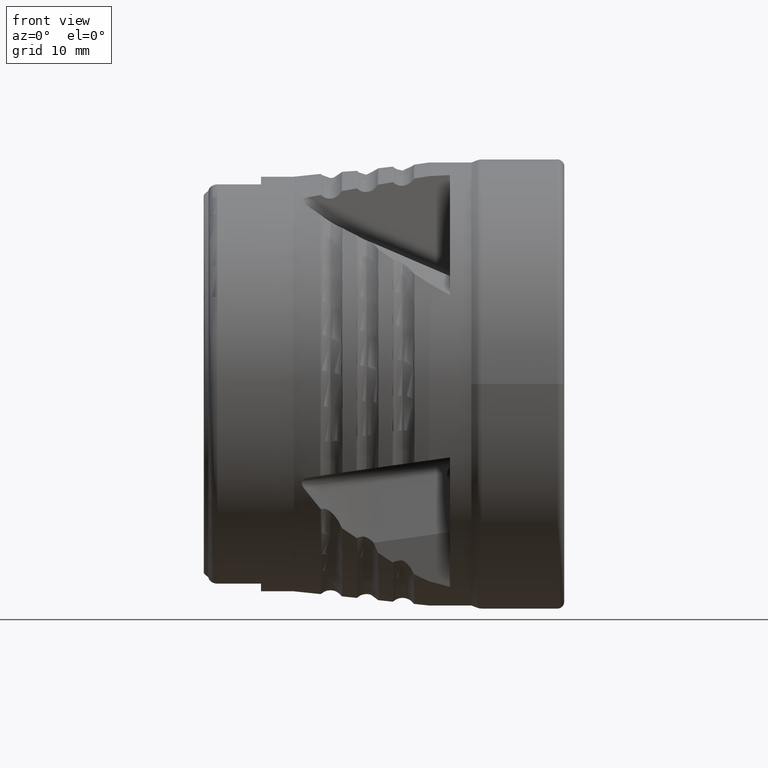
[diagram: clean part render]
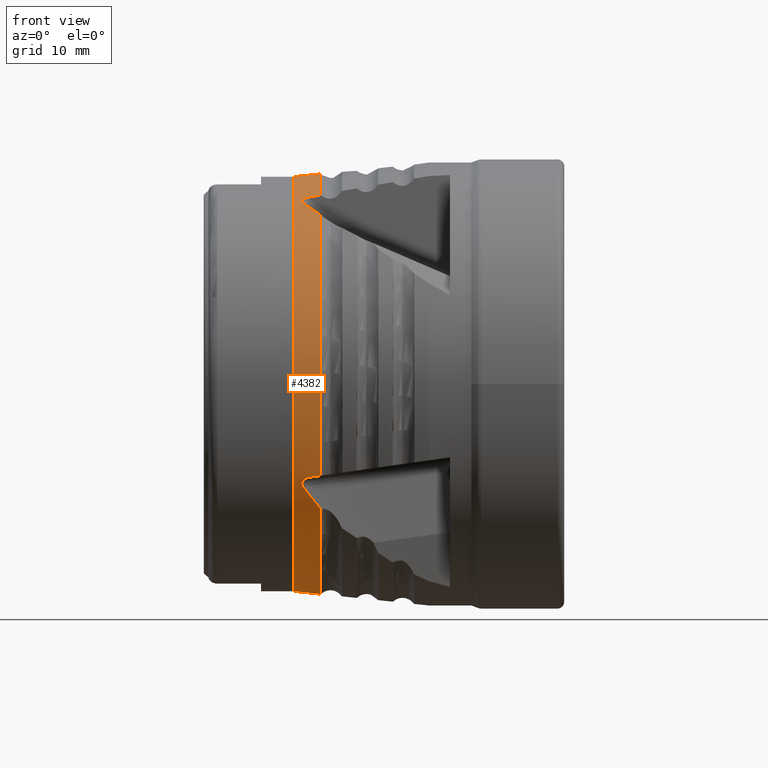
[diagram: same view with one face highlighted and labeled with its STEP entity id]
A machine part, front view. The second image highlights one B-rep face of the part: STEP entity #4382.
In plain terms, the highlighted conical surface has half-angle 5.994 deg.
Its self-contained STEP definition (entity closure, byte-faithful):
#788 = CARTESIAN_POINT ( 'NONE',  ( -26.65139746013423000, -12.29320080413323900, 19.65939681471392200 ) ) ;
#789 = CARTESIAN_POINT ( 'NONE',  ( -27.22045154104592500, -11.45574403278513200, 20.06864055888263800 ) ) ;
#797 = CARTESIAN_POINT ( 'NONE',  ( -26.02706063740641100, -13.07695468036883000, 19.22284738714630900 ) ) ;
#798 = CARTESIAN_POINT ( 'NONE',  ( -25.34068121597898900, -13.80947964294550800, 18.77348126520351100 ) ) ;
#816 = CARTESIAN_POINT ( 'NONE',  ( -25.34068121597906000, -10.18173196973281600, 20.96372249674169200 ) ) ;
#821 = CARTESIAN_POINT ( 'NONE',  ( -25.76481630875866100, -10.24134026969865000, 20.88526285211207800 ) ) ;
#822 = CARTESIAN_POINT ( 'NONE',  ( -26.18656862670541200, -10.30061369250056200, 20.80669119647839000 ) ) ;
#823 = CARTESIAN_POINT ( 'NONE',  ( -26.60593478011735900, -10.35955176174699900, 20.72800816133562700 ) ) ;
#1063 = CARTESIAN_POINT ( 'NONE',  ( -25.34068121597906800, 0.0000000000000000000, 0.0000000000000000000 ) ) ;
#1064 = DIRECTION ( 'NONE',  ( 1.000000000000000000, -0.0000000000000000000, -0.0000000000000000000 ) ) ;
#1066 = DIRECTION ( 'NONE',  ( 0.0000000000000000000, 0.0000000000000000000, -1.000000000000000000 ) ) ;
#1098 = CARTESIAN_POINT ( 'NONE',  ( -25.34068121597906800, 0.0000000000000000000, 0.0000000000000000000 ) ) ;
#1100 = DIRECTION ( 'NONE',  ( 1.000000000000000000, -0.0000000000000000000, -0.0000000000000000000 ) ) ;
#1102 = DIRECTION ( 'NONE',  ( 0.0000000000000000000, 0.0000000000000000000, -1.000000000000000000 ) ) ;
#1269 = CARTESIAN_POINT ( 'NONE',  ( -26.65139746013426200, -19.65939681471389400, -12.29320080413326500 ) ) ;
#1270 = CARTESIAN_POINT ( 'NONE',  ( -27.22045154104592500, -20.06864055888259200, -11.45574403278520300 ) ) ;
#1280 = CARTESIAN_POINT ( 'NONE',  ( -26.02706063740647800, -19.22284738714630200, -13.07695468036882000 ) ) ;
#1282 = CARTESIAN_POINT ( 'NONE',  ( -25.34068121597909600, -18.77348126520352500, -13.80947964294546500 ) ) ;
#1331 = EDGE_CURVE ( 'NONE', #4517, #4740, #3723, .T. ) ;
#1349 = EDGE_CURVE ( 'NONE', #3768, #3786, #5990, .T. ) ;
#1379 = EDGE_CURVE ( 'NONE', #4659, #4535, #2539, .T. ) ;
#1564 = LINE ( 'NONE', #1568, #4831 ) ;
#1568 = CARTESIAN_POINT ( 'NONE',  ( -25.34068121597906800, 0.0000000000000000000, -23.30547847232219300 ) ) ;
#1570 = DIRECTION ( 'NONE',  ( 0.9945326667047194000, 0.0000000000000000000, -0.1044259300039964100 ) ) ;
#1836 = CARTESIAN_POINT ( 'NONE',  ( -27.22045154104592500, -20.06864055888259200, -11.45574403278520300 ) ) ;
#1853 = CARTESIAN_POINT ( 'NONE',  ( -25.34068121597906000, -20.96372249674166400, -10.18173196973288700 ) ) ;
#1856 = CARTESIAN_POINT ( 'NONE',  ( -26.60593478011735900, -10.35955176174699900, 20.72800816133562700 ) ) ;
#1863 = CARTESIAN_POINT ( 'NONE',  ( -27.22045154104592500, -11.45574403278513200, 20.06864055888263800 ) ) ;
#1869 = CARTESIAN_POINT ( 'NONE',  ( -26.60593478011757900, -20.72800816133555200, -10.35955176174709900 ) ) ;
#1887 = CARTESIAN_POINT ( 'NONE',  ( -27.22045154104592500, -20.06864055888259200, -11.45574403278520300 ) ) ;
#1922 = CARTESIAN_POINT ( 'NONE',  ( -25.34068121597898900, -13.80947964294550800, 18.77348126520351100 ) ) ;
#1925 = CARTESIAN_POINT ( 'NONE',  ( -25.34068121597906000, -10.18173196973281600, 20.96372249674169200 ) ) ;
#2299 = CARTESIAN_POINT ( 'NONE',  ( -25.34068121597906000, -20.96372249674166400, -10.18173196973288700 ) ) ;
#2304 = DIRECTION ( 'NONE',  ( 0.0000000000000000000, 0.0000000000000000000, -1.000000000000000000 ) ) ;
#2305 = DIRECTION ( 'NONE',  ( 1.000000000000000000, -0.0000000000000000000, -0.0000000000000000000 ) ) ;
#2306 = CARTESIAN_POINT ( 'NONE',  ( -25.34068121597906800, 0.0000000000000000000, 0.0000000000000000000 ) ) ;
#2343 = CARTESIAN_POINT ( 'NONE',  ( -26.18656862670567500, -20.80669119647830800, -10.30061369250065600 ) ) ;
#2366 = CARTESIAN_POINT ( 'NONE',  ( -25.76481630875879200, -20.88526285211201700, -10.24134026969873900 ) ) ;
#2375 = CARTESIAN_POINT ( 'NONE',  ( -26.60593478011757900, -20.72800816133555200, -10.35955176174709900 ) ) ;
#2539 = LINE ( 'NONE', #2585, #3749 ) ;
#2543 = DIRECTION ( 'NONE',  ( 0.9945326667047194000, 1.278848809273797600E-017, 0.1044259300039964100 ) ) ;
#2585 = CARTESIAN_POINT ( 'NONE',  ( -25.34068121597906800, 2.854097961372692100E-015, 23.30547847232219300 ) ) ;
#3001 = EDGE_LOOP ( 'NONE', ( #5366, #5295, #5602, #5737, #5673, #5297, #5300, #5629, #5675, #5291, #5667, #5724 ) ) ;
#3158 = B_SPLINE_CURVE_WITH_KNOTS ( 'NONE', 3,
 ( #1270, #1269, #1280, #1282 ),
 .UNSPECIFIED., .F., .F.,
 ( 4, 4 ),
 ( 0.002104585943390354500, 0.005379675371929737400 ),
 .UNSPECIFIED. ) ;
#3193 = B_SPLINE_CURVE_WITH_KNOTS ( 'NONE', 3,
 ( #789, #788, #797, #798 ),
 .UNSPECIFIED., .F., .F.,
 ( 4, 4 ),
 ( 0.002104585943390369300, 0.005379675371929917000 ),
 .UNSPECIFIED. ) ;
#3267 = B_SPLINE_CURVE_WITH_KNOTS ( 'NONE', 3,
 ( #1836, #6246, #6259, #6260, #6261, #6262, #6263, #6264, #6265, #6266, #6267, #6268 ),
 .UNSPECIFIED., .F., .F.,
 ( 4, 2, 2, 2, 2, 4 ),
 ( 1.734723475976807100E-018, 0.0002126850559633348800, 0.0004253701119266680200, 0.0008507402238533343100, 0.001276110335780000600, 0.001701480447706666900 ),
 .UNSPECIFIED. ) ;
#3271 = B_SPLINE_CURVE_WITH_KNOTS ( 'NONE', 3,
 ( #6982, #6242, #6247, #6248, #6249, #6250, #6251, #6252, #6253, #6254, #6255, #6256 ),
 .UNSPECIFIED., .F., .F.,
 ( 4, 2, 2, 2, 2, 4 ),
 ( 1.734723475976807100E-018, 0.0002126850559633622000, 0.0004253701119267226700, 0.0008507402238534424000, 0.001276110335780162100, 0.001701480447706882000 ),
 .UNSPECIFIED. ) ;
#3309 = CIRCLE ( 'NONE', #3313, 23.30547847232219300 ) ;
#3313 = AXIS2_PLACEMENT_3D ( 'NONE', #1063, #1064, #1066 ) ;
#3320 = CIRCLE ( 'NONE', #3324, 23.30547847232219300 ) ;
#3324 = AXIS2_PLACEMENT_3D ( 'NONE', #1098, #1100, #1102 ) ;
#3467 = EDGE_CURVE ( 'NONE', #4750, #4740, #1564, .T. ) ;
#3552 = CONICAL_SURFACE ( 'NONE', #3553, 23.30547847232219300, 0.1046166576325205800 ) ;
#3553 = AXIS2_PLACEMENT_3D ( 'NONE', #6403, #6399, #6404 ) ;
#3586 = CIRCLE ( 'NONE', #3588, 22.99999999999999300 ) ;
#3588 = AXIS2_PLACEMENT_3D ( 'NONE', #6520, #6521, #6522 ) ;
#3723 = CIRCLE ( 'NONE', #3726, 23.30547847232219300 ) ;
#3726 = AXIS2_PLACEMENT_3D ( 'NONE', #2306, #2305, #2304 ) ;
#3749 = VECTOR ( 'NONE', #2543, 1000.000000000000000 ) ;
#3768 = VERTEX_POINT ( 'NONE', #1853 ) ;
#3773 = VERTEX_POINT ( 'NONE', #1856 ) ;
#3780 = VERTEX_POINT ( 'NONE', #1863 ) ;
#3786 = VERTEX_POINT ( 'NONE', #1869 ) ;
#3805 = VERTEX_POINT ( 'NONE', #1887 ) ;
#3842 = VERTEX_POINT ( 'NONE', #1922 ) ;
#3845 = VERTEX_POINT ( 'NONE', #1925 ) ;
#4194 = EDGE_CURVE ( 'NONE', #3780, #3842, #3193, .T. ) ;
#4200 = EDGE_CURVE ( 'NONE', #3845, #3773, #6015, .T. ) ;
#4239 = EDGE_CURVE ( 'NONE', #3842, #3768, #3309, .T. ) ;
#4244 = EDGE_CURVE ( 'NONE', #4535, #3845, #3320, .T. ) ;
#4264 = EDGE_CURVE ( 'NONE', #3805, #4517, #3158, .T. ) ;
#4348 = EDGE_CURVE ( 'NONE', #3780, #3773, #3271, .T. ) ;
#4349 = EDGE_CURVE ( 'NONE', #3805, #3786, #3267, .T. ) ;
#4382 = ADVANCED_FACE ( 'NONE', ( #6394 ), #3552, .T. ) ;
#4413 = EDGE_CURVE ( 'NONE', #4659, #4750, #3586, .T. ) ;
#4517 = VERTEX_POINT ( 'NONE', #6831 ) ;
#4535 = VERTEX_POINT ( 'NONE', #6846 ) ;
#4659 = VERTEX_POINT ( 'NONE', #6954 ) ;
#4740 = VERTEX_POINT ( 'NONE', #7034 ) ;
#4750 = VERTEX_POINT ( 'NONE', #7043 ) ;
#4831 = VECTOR ( 'NONE', #1570, 1000.000000000000000 ) ;
#5291 = ORIENTED_EDGE ( 'NONE', *, *, #4348, .T. ) ;
#5295 = ORIENTED_EDGE ( 'NONE', *, *, #4413, .T. ) ;
#5297 = ORIENTED_EDGE ( 'NONE', *, *, #4349, .T. ) ;
#5300 = ORIENTED_EDGE ( 'NONE', *, *, #1349, .F. ) ;
#5366 = ORIENTED_EDGE ( 'NONE', *, *, #1379, .F. ) ;
#5602 = ORIENTED_EDGE ( 'NONE', *, *, #3467, .T. ) ;
#5629 = ORIENTED_EDGE ( 'NONE', *, *, #4239, .F. ) ;
#5667 = ORIENTED_EDGE ( 'NONE', *, *, #4200, .F. ) ;
#5673 = ORIENTED_EDGE ( 'NONE', *, *, #4264, .F. ) ;
#5675 = ORIENTED_EDGE ( 'NONE', *, *, #4194, .F. ) ;
#5724 = ORIENTED_EDGE ( 'NONE', *, *, #4244, .F. ) ;
#5737 = ORIENTED_EDGE ( 'NONE', *, *, #1331, .F. ) ;
#5990 =( BOUNDED_CURVE ( )  B_SPLINE_CURVE ( 3, ( #2299, #2366, #2343, #2375 ),
 .UNSPECIFIED., .F., .T. ) 
 B_SPLINE_CURVE_WITH_KNOTS ( ( 4, 4 ),
 ( 2.673960306243181600, 2.679630294425171800 ),
 .UNSPECIFIED. ) 
 CURVE ( )  GEOMETRIC_REPRESENTATION_ITEM ( )  RATIONAL_B_SPLINE_CURVE ( ( 1.000000000000000000, 0.9999973209379622300, 0.9999973209379622300, 1.000000000000000000 ) ) 
 REPRESENTATION_ITEM ( '' )  );
#6015 =( BOUNDED_CURVE ( )  B_SPLINE_CURVE ( 3, ( #816, #821, #822, #823 ),
 .UNSPECIFIED., .F., .T. ) 
 B_SPLINE_CURVE_WITH_KNOTS ( ( 4, 4 ),
 ( 2.673960306243181600, 2.679630294425170000 ),
 .UNSPECIFIED. ) 
 CURVE ( )  GEOMETRIC_REPRESENTATION_ITEM ( )  RATIONAL_B_SPLINE_CURVE ( ( 1.000000000000000000, 0.9999973209379622300, 0.9999973209379622300, 1.000000000000000000 ) ) 
 REPRESENTATION_ITEM ( '' )  );
#6242 = CARTESIAN_POINT ( 'NONE',  ( -27.25778788197035100, -11.40079745991383600, 20.09549154627735800 ) ) ;
#6246 = CARTESIAN_POINT ( 'NONE',  ( -27.25778788197034800, -20.09549154627730200, -11.40079745991391900 ) ) ;
#6247 = CARTESIAN_POINT ( 'NONE',  ( -27.28917123652754700, -11.34381754450513000, 20.12394661385623000 ) ) ;
#6248 = CARTESIAN_POINT ( 'NONE',  ( -27.33780711290611300, -11.22500674418743400, 20.18461621573347700 ) ) ;
#6249 = CARTESIAN_POINT ( 'NONE',  ( -27.35500033885963600, -11.16256075507388300, 20.21716814017556600 ) ) ;
#6250 = CARTESIAN_POINT ( 'NONE',  ( -27.37775740592520900, -10.97594247362231500, 20.31673912541739900 ) ) ;
#6251 = CARTESIAN_POINT ( 'NONE',  ( -27.35349850227365900, -10.84884086311613400, 20.38768842254079400 ) ) ;
#6252 = CARTESIAN_POINT ( 'NONE',  ( -27.22169868811131400, -10.62972785178113200, 20.51836891920724100 ) ) ;
#6253 = CARTESIAN_POINT ( 'NONE',  ( -27.11881549299213400, -10.54237905698527000, 20.57527254266060600 ) ) ;
#6254 = CARTESIAN_POINT ( 'NONE',  ( -26.87927684267649700, -10.41719547321497100, 20.66710463180087100 ) ) ;
#6255 = CARTESIAN_POINT ( 'NONE',  ( -26.74533742758072600, -10.37914352618121100, 20.70185291890583900 ) ) ;
#6256 = CARTESIAN_POINT ( 'NONE',  ( -26.60593478011735900, -10.35955176174699900, 20.72800816133562700 ) ) ;
#6259 = CARTESIAN_POINT ( 'NONE',  ( -27.28917123652755100, -20.12394661385618000, -11.34381754450522500 ) ) ;
#6260 = CARTESIAN_POINT ( 'NONE',  ( -27.33780711290610600, -20.18461621573342100, -11.22500674418754100 ) ) ;
#6261 = CARTESIAN_POINT ( 'NONE',  ( -27.35500033885963200, -20.21716814017550200, -11.16256075507400200 ) ) ;
#6262 = CARTESIAN_POINT ( 'NONE',  ( -27.37775740592520900, -20.31673912541732100, -10.97594247362245500 ) ) ;
#6263 = CARTESIAN_POINT ( 'NONE',  ( -27.35349850227368800, -20.38768842254069500, -10.84884086311629200 ) ) ;
#6264 = CARTESIAN_POINT ( 'NONE',  ( -27.22169868811139200, -20.51836891920714500, -10.62972785178128800 ) ) ;
#6265 = CARTESIAN_POINT ( 'NONE',  ( -27.11881549299225100, -20.57527254266051400, -10.54237905698543000 ) ) ;
#6266 = CARTESIAN_POINT ( 'NONE',  ( -26.87927684267668100, -20.66710463180078200, -10.41719547321511600 ) ) ;
#6267 = CARTESIAN_POINT ( 'NONE',  ( -26.74533742758076100, -20.70185291890580000, -10.37914352618129700 ) ) ;
#6268 = CARTESIAN_POINT ( 'NONE',  ( -26.60593478011757900, -20.72800816133555200, -10.35955176174709900 ) ) ;
#6394 = FACE_OUTER_BOUND ( 'NONE', #3001, .T. ) ;
#6399 = DIRECTION ( 'NONE',  ( 1.000000000000000000, -0.0000000000000000000, -0.0000000000000000000 ) ) ;
#6403 = CARTESIAN_POINT ( 'NONE',  ( -25.34068121597906800, 0.0000000000000000000, 0.0000000000000000000 ) ) ;
#6404 = DIRECTION ( 'NONE',  ( 0.0000000000000000000, 0.0000000000000000000, -1.000000000000000000 ) ) ;
#6520 = CARTESIAN_POINT ( 'NONE',  ( -28.24999999999999600, 0.0000000000000000000, 0.0000000000000000000 ) ) ;
#6521 = DIRECTION ( 'NONE',  ( 1.000000000000000000, -0.0000000000000000000, -0.0000000000000000000 ) ) ;
#6522 = DIRECTION ( 'NONE',  ( 0.0000000000000000000, 0.0000000000000000000, -1.000000000000000000 ) ) ;
#6831 = CARTESIAN_POINT ( 'NONE',  ( -25.34068121597909600, -18.77348126520352500, -13.80947964294546500 ) ) ;
#6846 = CARTESIAN_POINT ( 'NONE',  ( -25.34068121597906800, 2.854097961372692100E-015, 23.30547847232219300 ) ) ;
#6954 = CARTESIAN_POINT ( 'NONE',  ( -28.24999999999999600, 2.835392799705802600E-015, 22.99999999999999300 ) ) ;
#6982 = CARTESIAN_POINT ( 'NONE',  ( -27.22045154104592500, -11.45574403278513200, 20.06864055888263800 ) ) ;
#7034 = CARTESIAN_POINT ( 'NONE',  ( -25.34068121597906800, 0.0000000000000000000, -23.30547847232219300 ) ) ;
#7043 = CARTESIAN_POINT ( 'NONE',  ( -28.24999999999999600, 0.0000000000000000000, -22.99999999999999300 ) ) ;